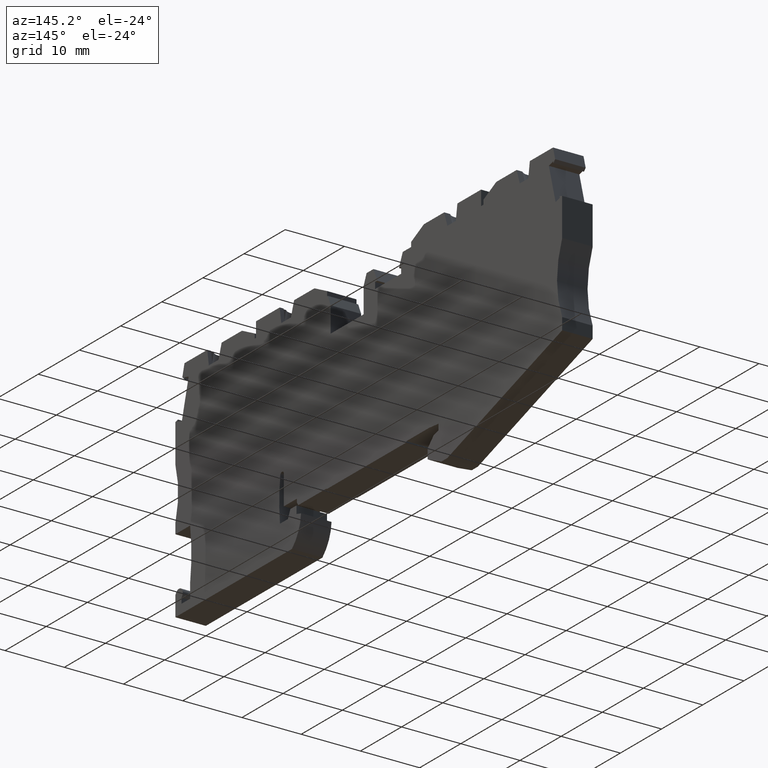
[diagram: clean part render]
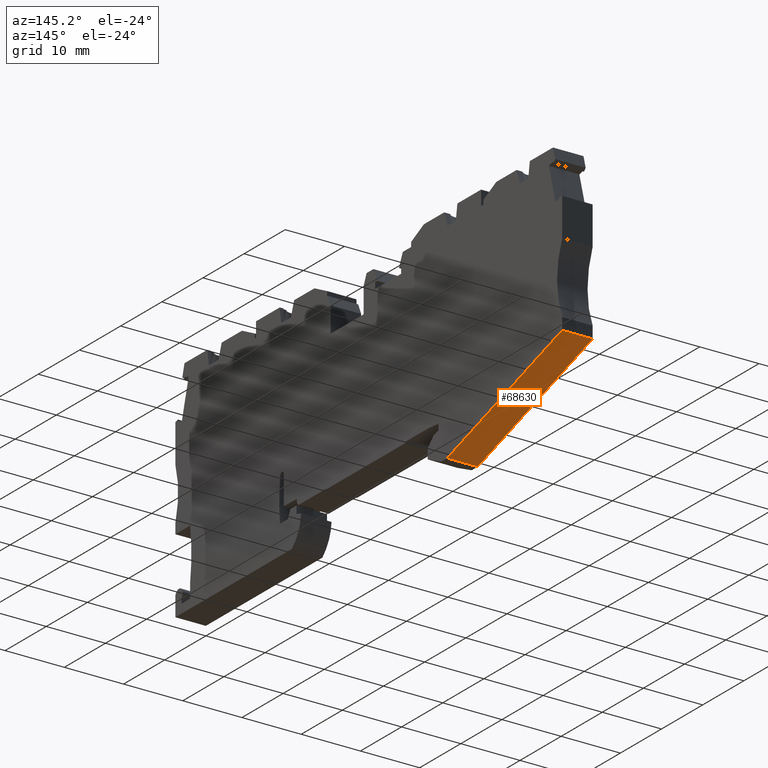
[diagram: same view with one face highlighted and labeled with its STEP entity id]
A machine part, auxiliary view. The second image highlights one B-rep face of the part: STEP entity #68630.
In plain terms, the highlighted planar face has unit normal (-0, 0.3128, -0.9498).
Its self-contained STEP definition (entity closure, byte-faithful):
#7430=CARTESIAN_POINT('',(82.4574372953297,13.1784692883304,
5.17208357940035E-11));
#7440=VERTEX_POINT('',#7430);
#7470=CARTESIAN_POINT('',(-3.46979381416939E-12,-25.6765009430287,
9.58542171852398E-11));
#7480=DIRECTION('',(0.904601039469285,0.426259263114703,
-4.84193663180671E-13));
#7490=VECTOR('',#7480,1.);
#7500=LINE('',#7470,#7490);
#7510=CARTESIAN_POINT('',(55.8575904551348,0.644290552788042,
6.59577159400354E-11));
#7520=VERTEX_POINT('',#7510);
#7530=EDGE_CURVE('',#7520,#7440,#7500,.T.);
#7820=CARTESIAN_POINT('',(55.8575904551349,0.644290552788054,
-5.150000000073));
#7830=VERTEX_POINT('',#7820);
#7860=CARTESIAN_POINT('',(-3.34227452304577E-12,-25.6765009430287,
-5.15000000009261));
#7870=DIRECTION('',(0.904601039469285,0.426259263114703,
3.17498382901155E-13));
#7880=VECTOR('',#7870,1.);
#7890=LINE('',#7860,#7880);
#7900=CARTESIAN_POINT('',(82.4574372953299,13.1784692883304,
-5.15000000006367));
#7910=VERTEX_POINT('',#7900);
#7920=EDGE_CURVE('',#7830,#7910,#7890,.T.);
#68240=CARTESIAN_POINT('',(82.4574372953297,13.1784692883304,
1.87699236252475E-12));
#68250=DIRECTION('',(-2.47610274017394E-14,-3.00054079505067E-15,1.));
#68260=VECTOR('',#68250,1.);
#68270=LINE('',#68240,#68260);
#68280=EDGE_CURVE('',#7910,#7440,#68270,.T.);
#68470=CARTESIAN_POINT('',(56.1478699221846,0.781073848764112,
1.14215627527946E-12));
#68480=DIRECTION('',(0.426259263114703,-0.904601039469285,
7.84032497205556E-15));
#68490=DIRECTION('',(-0.904601039469285,-0.426259263114703,
-2.36778594341069E-14));
#68500=AXIS2_PLACEMENT_3D('',#68470,#68480,#68490);
#68510=PLANE('',#68500);
#68520=CARTESIAN_POINT('',(55.8575904551348,0.644290552788042,
1.18074351140645E-12));
#68530=DIRECTION('',(2.46618945775862E-14,2.9538281750886E-15,-1.));
#68540=VECTOR('',#68530,1.);
#68550=LINE('',#68520,#68540);
#68560=EDGE_CURVE('',#7520,#7830,#68550,.T.);
#68570=ORIENTED_EDGE('',*,*,#68560,.T.);
#68580=ORIENTED_EDGE('',*,*,#7530,.F.);
#68590=ORIENTED_EDGE('',*,*,#68280,.T.);
#68600=ORIENTED_EDGE('',*,*,#7920,.T.);
#68610=EDGE_LOOP('',(#68600,#68590,#68580,#68570));
#68620=FACE_OUTER_BOUND('',#68610,.T.);
#68630=ADVANCED_FACE('',(#68620),#68510,.T.);